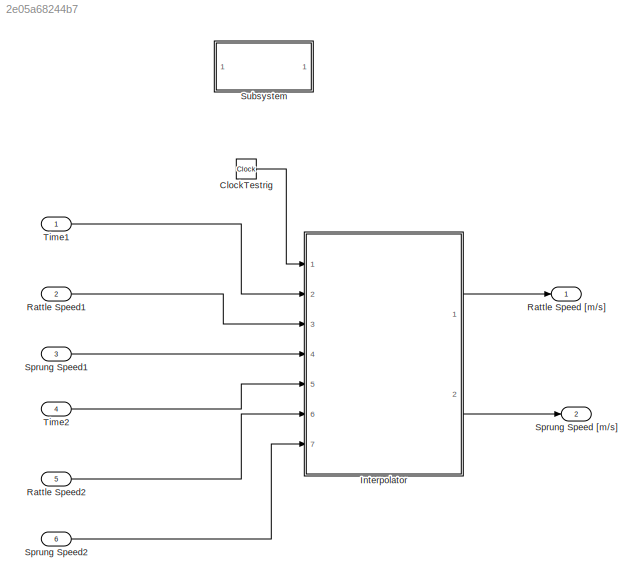
MODEL slx_2e05a68244b7
KIND model
CONFIG AbsTol = auto
CONFIG EnableMultiTasking = off
CONFIG FixedStep = 0.001
CONFIG MaxStep = auto
CONFIG MinStep = auto
CONFIG RelTol = 1e-3
CONFIG SampleTimeConstraint = Unconstrained
CONFIG SolverName = ode1
CONFIG StartTime = 0.0
CONFIG StopTime = inf
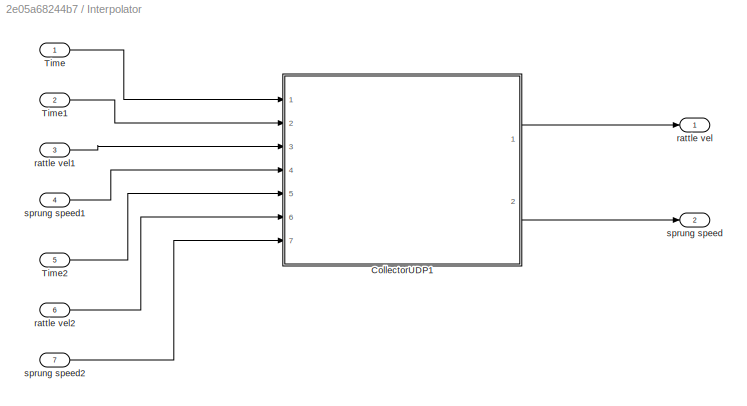
BLOCK [SubSystem]  Interpolator
  Ports = [7, 2]
  RequestExecContextInheritance = off
  TreatAsAtomicUnit = on
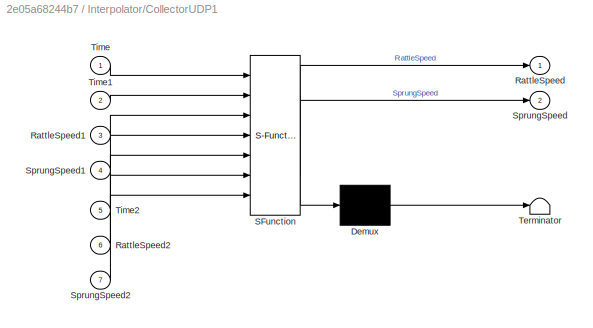
BLOCK [SubSystem]  Interpolator/CollectorUDP1
  ErrorFcn = Stateflow.Translate.translate
  PermitHierarchicalResolution = ExplicitOnly
  Ports = [7, 2]
  RequestExecContextInheritance = off
  SFBlockType = MATLAB Function
  TreatAsAtomicUnit = on
BLOCK [Demux]  Interpolator/CollectorUDP1/ Demux 
  Outputs = 1
  Ports = [1, 1]
BLOCK [S-Function]  Interpolator/CollectorUDP1/ SFunction 
  EnableBusSupport = on
  FunctionName = sf_sfun
  PortCounts = [7 3]
  Ports = [7, 3]
  SFcnIsStateOwnerBlock = off
  SFunctionDeploymentMode = off
  Tag = Stateflow S-Function 1
BLOCK [Terminator]  Interpolator/CollectorUDP1/ Terminator 
BLOCK [Outport]  Interpolator/CollectorUDP1/RattleSpeed
BLOCK [Inport]  Interpolator/CollectorUDP1/RattleSpeed1
  Port = 3
BLOCK [Inport]  Interpolator/CollectorUDP1/RattleSpeed2
  Port = 6
BLOCK [Outport]  Interpolator/CollectorUDP1/SprungSpeed
  Port = 2
BLOCK [Inport]  Interpolator/CollectorUDP1/SprungSpeed1
  Port = 4
BLOCK [Inport]  Interpolator/CollectorUDP1/SprungSpeed2
  Port = 7
BLOCK [Inport]  Interpolator/CollectorUDP1/Time
BLOCK [Inport]  Interpolator/CollectorUDP1/Time1
  Port = 2
BLOCK [Inport]  Interpolator/CollectorUDP1/Time2
  Port = 5
BLOCK [Inport]  Interpolator/Time
BLOCK [Inport]  Interpolator/Time1
  Port = 2
BLOCK [Inport]  Interpolator/Time2
  Port = 5
BLOCK [Outport]  Interpolator/rattle vel
BLOCK [Inport]  Interpolator/rattle vel1
  Port = 3
BLOCK [Inport]  Interpolator/rattle vel2
  Port = 6
BLOCK [Outport]  Interpolator/sprung speed
  Port = 2
BLOCK [Inport]  Interpolator/sprung speed1
  Port = 4
BLOCK [Inport]  Interpolator/sprung speed2
  Port = 7
BLOCK [Clock] ClockTestrig
BLOCK [Outport] Rattle Speed [m//s]
BLOCK [Inport] Rattle Speed1
  Port = 2
BLOCK [Inport] Rattle Speed2
  Port = 5
BLOCK [Outport] Sprung Speed [m//s]
  Port = 2
BLOCK [Inport] Sprung Speed1
  Port = 3
BLOCK [Inport] Sprung Speed2
  Port = 6
BLOCK [SubSystem] Subsystem
  OpenFcn = k_tire = 225400;  %200000 in literature\nc_tire = 100;        % Estimated. In literatures 6N\nk_susp =  25000;  % 15000 in literature\nc_susp = 400;       %1429 Ns/m in literature\ng = 0 % 9.8; Removed to avoid initialization problems\nm_unsprung = 66;\nm_sprung = 449.25;\nX_sprung0  = .5;\nX_unsprung0  = .1;\ndelayTimeCarToDamper =  0.002;\n%InitQuarterCarCompensatorScript;\n%Amplitude =.01;
  Ports = []
  RequestExecContextInheritance = off
BLOCK [Inport] Time1
BLOCK [Inport] Time2
  Port = 4
LINE  Interpolator/CollectorUDP1:1 ->  Interpolator/rattle vel:1
LINE  Interpolator/CollectorUDP1:2 ->  Interpolator/sprung speed:1
LINE  Interpolator/Time1:1 ->  Interpolator/CollectorUDP1:2
LINE  Interpolator/Time2:1 ->  Interpolator/CollectorUDP1:5
LINE  Interpolator/Time:1 ->  Interpolator/CollectorUDP1:1
LINE  Interpolator/rattle vel1:1 ->  Interpolator/CollectorUDP1:3
LINE  Interpolator/rattle vel2:1 ->  Interpolator/CollectorUDP1:6
LINE  Interpolator/sprung speed1:1 ->  Interpolator/CollectorUDP1:4
LINE  Interpolator/sprung speed2:1 ->  Interpolator/CollectorUDP1:7
LINE  Interpolator:1 -> Rattle Speed [m//s]:1
LINE  Interpolator:2 -> Sprung Speed [m//s]:1
LINE ClockTestrig:1 ->  Interpolator:1
LINE Rattle Speed1:1 ->  Interpolator:3
LINE Rattle Speed2:1 ->  Interpolator:6
LINE Sprung Speed1:1 ->  Interpolator:4
LINE Sprung Speed2:1 ->  Interpolator:7
LINE Time1:1 ->  Interpolator:2
LINE Time2:1 ->  Interpolator:5
CHART  Interpolator/CollectorUDP1 states=1 transitions=1
  STATE_LABEL 'eML_blk_kernel()'
  STATE_LABEL 'SCRIPT:\nfunction [RattleSpeed, SprungSpeed] = collectorInterpolator(Time, Time1, RattleSpeed1,SprungSpeed1,Time2, RattleSpeed2,SprungSpeed2)  \n\n%initialization of buffer\npersistent Buffer_Time1,persistent Buffer_RattleSpeed1,persistent Buffer_SprungSpeed1;\npersistent Buffer_Time2,persistent Buffer_RattleSpeed2,persistent Buffer_SprungSpeed2;\nif isempty(Buffer_Time1)  \n   Buffer_Time1 = Time1;\n   B...<+862ch>'
CHART  states=0 transitions=0
